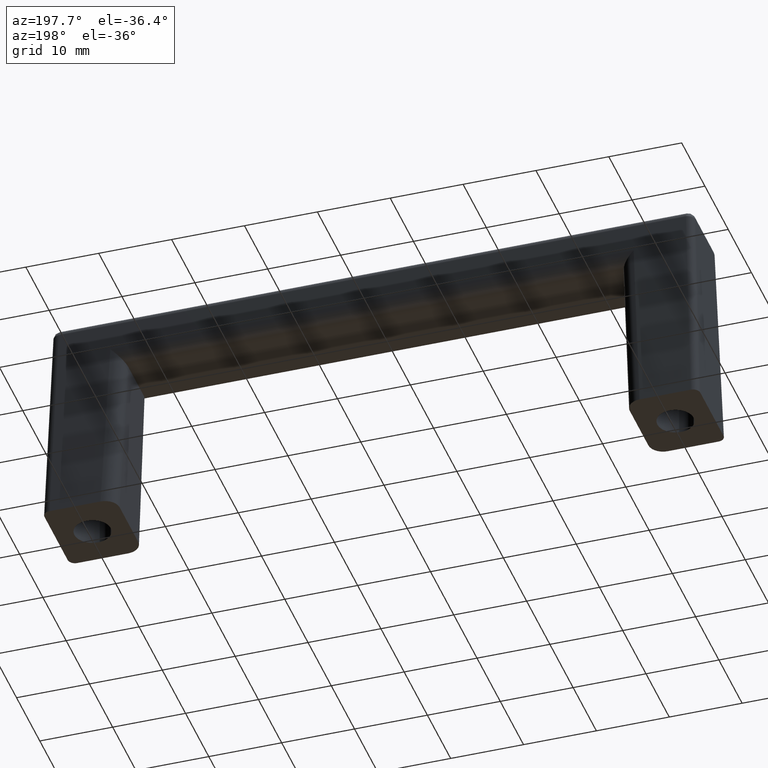
[diagram: clean part render]
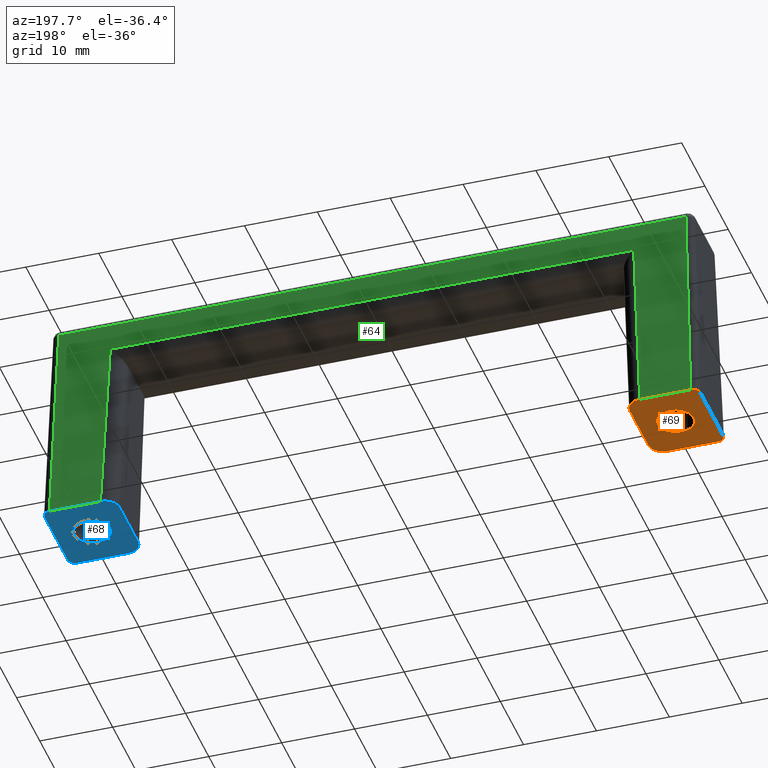
[diagram: same view with three faces highlighted in distinct colors, each labeled with its STEP entity id]
A machine part, auxiliary view with three faces highlighted in distinct colors.
Their STEP definitions:

[orange] entity #69 — the highlighted planar face has unit normal (0, 0, -1).
#69=ADVANCED_FACE('',(#366,#367),#365,.T.);
#365=PLANE('',#613);
#366=FACE_OUTER_BOUND('',#614,.T.);
#367=FACE_BOUND('',#615,.T.);
#610=CARTESIAN_POINT('',(-3.40000000000E+01,-7.20000000000E+00,0.00000000000E+00));
#611=DIRECTION('',(0.00000000000E+00,0.00000000000E+00,-1.00000000000E+00));
#612=DIRECTION('',(-1.00000000000E+00,0.00000000000E+00,0.00000000000E+00));
#613=AXIS2_PLACEMENT_3D('',#610,#611,#612);
#614=EDGE_LOOP('',(#769,#770,#771,#772,#773,#774,#775,#776));
#615=EDGE_LOOP('',(#777,#778,#779));
#769=ORIENTED_EDGE('',*,*,#806,.T.);
#770=ORIENTED_EDGE('',*,*,#826,.T.);
#771=ORIENTED_EDGE('',*,*,#866,.F.);
#772=ORIENTED_EDGE('',*,*,#831,.T.);
#773=ORIENTED_EDGE('',*,*,#871,.F.);
#774=ORIENTED_EDGE('',*,*,#851,.T.);
#775=ORIENTED_EDGE('',*,*,#868,.T.);
#776=ORIENTED_EDGE('',*,*,#818,.T.);
#777=ORIENTED_EDGE('',*,*,#875,.F.);
#778=ORIENTED_EDGE('',*,*,#876,.F.);
#779=ORIENTED_EDGE('',*,*,#877,.F.);
#806=EDGE_CURVE('',#924,#917,#925,.T.);
#818=EDGE_CURVE('',#1006,#924,#1007,.T.);
#826=EDGE_CURVE('',#917,#1052,#1059,.T.);
#831=EDGE_CURVE('',#1091,#1092,#1093,.T.);
#851=EDGE_CURVE('',#1226,#1227,#1228,.T.);
#866=EDGE_CURVE('',#1091,#1052,#1324,.T.);
#868=EDGE_CURVE('',#1227,#1006,#1336,.T.);
#871=EDGE_CURVE('',#1226,#1092,#1354,.T.);
#875=EDGE_CURVE('',#1381,#1382,#1383,.T.);
#876=EDGE_CURVE('',#1389,#1381,#1390,.T.);
#877=EDGE_CURVE('',#1382,#1389,#1396,.T.);
#917=VERTEX_POINT('',#1447);
#924=VERTEX_POINT('',#1451);
#925=LINE('',#1452,#1453);
#1006=VERTEX_POINT('',#1505);
#1007=(BOUNDED_CURVE() B_SPLINE_CURVE(2,(#1506,#1507,#1508,#1509,#1510),.UNSPECIFIED.,.F.,.F.) B_SPLINE_CURVE_WITH_KNOTS((3,2,3),(0.00000000000E+00,5.00000000000E-01,1.00000000000E+00),.UNSPECIFIED.) CURVE() GEOMETRIC_REPRESENTATION_ITEM() RATIONAL_B_SPLINE_CURVE((1.00000000000E+00,9.23740992977E-01,1.00000000000E+00,9.23740992977E-01,1.00000000000E+00)) REPRESENTATION_ITEM('') );
#1052=VERTEX_POINT('',#1538);
#1059=(BOUNDED_CURVE() B_SPLINE_CURVE(2,(#1542,#1543,#1544,#1545,#1546),.UNSPECIFIED.,.F.,.F.) B_SPLINE_CURVE_WITH_KNOTS((3,2,3),(0.00000000000E+00,5.00000000000E-01,1.00000000000E+00),.UNSPECIFIED.) CURVE() GEOMETRIC_REPRESENTATION_ITEM() RATIONAL_B_SPLINE_CURVE((1.00000000000E+00,9.23740992977E-01,1.00000000000E+00,9.23740992977E-01,1.00000000000E+00)) REPRESENTATION_ITEM('') );
#1091=VERTEX_POINT('',#1565);
#1092=VERTEX_POINT('',#1566);
#1093=(BOUNDED_CURVE() B_SPLINE_CURVE(2,(#1567,#1568,#1569),.UNSPECIFIED.,.F.,.F.) B_SPLINE_CURVE_WITH_KNOTS((3,3),(0.00000000000E+00,1.00000000000E+00),.UNSPECIFIED.) CURVE() GEOMETRIC_REPRESENTATION_ITEM() RATIONAL_B_SPLINE_CURVE((1.00000000000E+00,7.07499181416E-01,1.00000000000E+00)) REPRESENTATION_ITEM('') );
#1226=VERTEX_POINT('',#1650);
#1227=VERTEX_POINT('',#1651);
#1228=(BOUNDED_CURVE() B_SPLINE_CURVE(2,(#1652,#1653,#1654),.UNSPECIFIED.,.F.,.F.) B_SPLINE_CURVE_WITH_KNOTS((3,3),(0.00000000000E+00,1.00000000000E+00),.UNSPECIFIED.) CURVE() GEOMETRIC_REPRESENTATION_ITEM() RATIONAL_B_SPLINE_CURVE((1.00000000000E+00,7.07499181416E-01,1.00000000000E+00)) REPRESENTATION_ITEM('') );
#1324=LINE('',#1708,#1709);
#1336=LINE('',#1714,#1715);
#1354=LINE('',#1723,#1724);
#1381=VERTEX_POINT('',#1741);
#1382=VERTEX_POINT('',#1742);
#1383=CIRCLE('',#1746,2.50000000000E+00);
#1389=VERTEX_POINT('',#1747);
#1390=CIRCLE('',#1751,2.50000000000E+00);
#1396=CIRCLE('',#1755,2.50000000000E+00);
#1447=CARTESIAN_POINT('',(-3.50000000000E+01,-3.99599214866E+00,0.00000000000E+00));
#1451=CARTESIAN_POINT('',(-3.50000000000E+01,3.99599214866E+00,0.00000000000E+00));
#1452=CARTESIAN_POINT('',(-3.50000000000E+01,3.99599214866E+00,0.00000000000E+00));
#1453=VECTOR('',#1454,7.99198429731E+00);
#1454=DIRECTION('',(0.00000000000E+00,-1.00000000000E+00,0.00000000000E+00));
#1505=CARTESIAN_POINT('',(-3.70047871061E+01,6.00000000000E+00,0.00000000000E+00));
#1506=CARTESIAN_POINT('',(-3.70047871061E+01,6.00000000000E+00,0.00000000000E+00));
#1507=CARTESIAN_POINT('',(-3.61747293817E+01,6.00000000000E+00,0.00000000000E+00));
#1508=CARTESIAN_POINT('',(-3.55873646908E+01,5.41286361607E+00,0.00000000000E+00));
#1509=CARTESIAN_POINT('',(-3.50000000000E+01,4.82572723213E+00,0.00000000000E+00));
#1510=CARTESIAN_POINT('',(-3.50000000000E+01,3.99599214866E+00,0.00000000000E+00));
#1538=CARTESIAN_POINT('',(-3.70047871061E+01,-6.00000000000E+00,0.00000000000E+00));
#1542=CARTESIAN_POINT('',(-3.50000000000E+01,-3.99599214866E+00,0.00000000000E+00));
#1543=CARTESIAN_POINT('',(-3.50000000000E+01,-4.82572723213E+00,0.00000000000E+00));
#1544=CARTESIAN_POINT('',(-3.55873646908E+01,-5.41286361607E+00,0.00000000000E+00));
#1545=CARTESIAN_POINT('',(-3.61747293817E+01,-6.00000000000E+00,0.00000000000E+00));
#1546=CARTESIAN_POINT('',(-3.70047871061E+01,-6.00000000000E+00,0.00000000000E+00));
#1565=CARTESIAN_POINT('',(-4.40005553605E+01,-6.00000000000E+00,0.00000000000E+00));
#1566=CARTESIAN_POINT('',(-4.50000000000E+01,-5.00055513121E+00,0.00000000000E+00));
#1567=CARTESIAN_POINT('',(-4.40005553605E+01,-6.00000000000E+00,0.00000000000E+00));
#1568=CARTESIAN_POINT('',(-4.50000000000E+01,-6.00000000000E+00,0.00000000000E+00));
#1569=CARTESIAN_POINT('',(-4.50000000000E+01,-5.00055513121E+00,0.00000000000E+00));
#1650=CARTESIAN_POINT('',(-4.50000000000E+01,5.00055513120E+00,0.00000000000E+00));
#1651=CARTESIAN_POINT('',(-4.40005553605E+01,6.00000000000E+00,0.00000000000E+00));
#1652=CARTESIAN_POINT('',(-4.50000000000E+01,5.00055513120E+00,0.00000000000E+00));
#1653=CARTESIAN_POINT('',(-4.50000000000E+01,6.00000000000E+00,0.00000000000E+00));
#1654=CARTESIAN_POINT('',(-4.40005553605E+01,6.00000000000E+00,0.00000000000E+00));
#1708=CARTESIAN_POINT('',(-4.40005553605E+01,-6.00000000000E+00,0.00000000000E+00));
#1709=VECTOR('',#1710,6.99576825438E+00);
#1710=DIRECTION('',(1.00000000000E+00,0.00000000000E+00,0.00000000000E+00));
#1714=CARTESIAN_POINT('',(-4.40005553605E+01,6.00000000000E+00,0.00000000000E+00));
#1715=VECTOR('',#1716,6.99576825438E+00);
#1716=DIRECTION('',(1.00000000000E+00,0.00000000000E+00,0.00000000000E+00));
#1723=CARTESIAN_POINT('',(-4.50000000000E+01,5.00055513120E+00,0.00000000000E+00));
#1724=VECTOR('',#1725,1.00011102624E+01);
#1725=DIRECTION('',(0.00000000000E+00,-1.00000000000E+00,0.00000000000E+00));
#1741=CARTESIAN_POINT('',(-3.97049153212E+01,-2.48252392382E+00,-6.81319777001E-16));
#1742=CARTESIAN_POINT('',(-4.25000000000E+01,-9.99200722163E-16,-6.20396009080E-15));
#1743=CARTESIAN_POINT('',(-4.00000000000E+01,-1.73194791842E-14,-5.11024536365E-16));
#1744=DIRECTION('',(2.27717422177E-15,3.39273453259E-16,-1.00000000000E+00));
#1745=DIRECTION('',(-1.00000000000E+00,6.91113832829E-15,-2.27717422177E-15));
#1746=AXIS2_PLACEMENT_3D('',#1743,#1744,#1745);
#1747=CARTESIAN_POINT('',(-4.02955146530E+01,2.48247277726E+00,-3.41725774580E-16));
#1748=CARTESIAN_POINT('',(-4.00000000000E+01,-1.73194791842E-14,-5.11024536365E-16));
#1749=DIRECTION('',(2.27717422177E-15,3.39273453259E-16,-1.00000000000E+00));
#1750=DIRECTION('',(-1.00000000000E+00,6.91113832829E-15,-2.27717422177E-15));
#1751=AXIS2_PLACEMENT_3D('',#1748,#1749,#1750);
#1752=CARTESIAN_POINT('',(-4.00000000000E+01,-1.73194791842E-14,-5.11024536365E-16));
#1753=DIRECTION('',(2.27717422177E-15,3.39273453259E-16,-1.00000000000E+00));
#1754=DIRECTION('',(-1.00000000000E+00,6.91113832829E-15,-2.27717422177E-15));
#1755=AXIS2_PLACEMENT_3D('',#1752,#1753,#1754);

[blue] entity #68 — the highlighted planar face has unit normal (0, 0, -1).
#68=ADVANCED_FACE('',(#355,#356),#354,.T.);
#354=PLANE('',#607);
#355=FACE_OUTER_BOUND('',#608,.T.);
#356=FACE_BOUND('',#609,.T.);
#604=CARTESIAN_POINT('',(4.60000000000E+01,-7.20000000000E+00,0.00000000000E+00));
#605=DIRECTION('',(0.00000000000E+00,0.00000000000E+00,-1.00000000000E+00));
#606=DIRECTION('',(-1.00000000000E+00,8.07508320003E-17,0.00000000000E+00));
#607=AXIS2_PLACEMENT_3D('',#604,#605,#606);
#608=EDGE_LOOP('',(#758,#759,#760,#761,#762,#763,#764,#765));
#609=EDGE_LOOP('',(#766,#767,#768));
#758=ORIENTED_EDGE('',*,*,#867,.F.);
#759=ORIENTED_EDGE('',*,*,#829,.T.);
#760=ORIENTED_EDGE('',*,*,#809,.F.);
#761=ORIENTED_EDGE('',*,*,#823,.T.);
#762=ORIENTED_EDGE('',*,*,#869,.T.);
#763=ORIENTED_EDGE('',*,*,#857,.T.);
#764=ORIENTED_EDGE('',*,*,#870,.T.);
#765=ORIENTED_EDGE('',*,*,#842,.T.);
#766=ORIENTED_EDGE('',*,*,#872,.T.);
#767=ORIENTED_EDGE('',*,*,#873,.T.);
#768=ORIENTED_EDGE('',*,*,#874,.T.);
#809=EDGE_CURVE('',#944,#945,#946,.T.);
#823=EDGE_CURVE('',#944,#1032,#1039,.T.);
#829=EDGE_CURVE('',#1078,#945,#1079,.T.);
#842=EDGE_CURVE('',#1165,#1166,#1167,.T.);
#857=EDGE_CURVE('',#1266,#1259,#1267,.T.);
#867=EDGE_CURVE('',#1078,#1166,#1330,.T.);
#869=EDGE_CURVE('',#1032,#1266,#1342,.T.);
#870=EDGE_CURVE('',#1259,#1165,#1348,.T.);
#872=EDGE_CURVE('',#1360,#1361,#1362,.T.);
#873=EDGE_CURVE('',#1361,#1368,#1369,.T.);
#874=EDGE_CURVE('',#1368,#1360,#1375,.T.);
#944=VERTEX_POINT('',#1463);
#945=VERTEX_POINT('',#1464);
#946=LINE('',#1465,#1466);
#1032=VERTEX_POINT('',#1523);
#1039=(BOUNDED_CURVE() B_SPLINE_CURVE(2,(#1527,#1528,#1529,#1530,#1531),.UNSPECIFIED.,.F.,.F.) B_SPLINE_CURVE_WITH_KNOTS((3,2,3),(0.00000000000E+00,5.00000000000E-01,1.00000000000E+00),.UNSPECIFIED.) CURVE() GEOMETRIC_REPRESENTATION_ITEM() RATIONAL_B_SPLINE_CURVE((1.00000000000E+00,9.23740992977E-01,1.00000000000E+00,9.23740992977E-01,1.00000000000E+00)) REPRESENTATION_ITEM('') );
#1078=VERTEX_POINT('',#1556);
#1079=(BOUNDED_CURVE() B_SPLINE_CURVE(2,(#1557,#1558,#1559,#1560,#1561),.UNSPECIFIED.,.F.,.F.) B_SPLINE_CURVE_WITH_KNOTS((3,2,3),(0.00000000000E+00,5.00000000000E-01,1.00000000000E+00),.UNSPECIFIED.) CURVE() GEOMETRIC_REPRESENTATION_ITEM() RATIONAL_B_SPLINE_CURVE((1.00000000000E+00,9.23740992977E-01,1.00000000000E+00,9.23740992977E-01,1.00000000000E+00)) REPRESENTATION_ITEM('') );
#1165=VERTEX_POINT('',#1612);
#1166=VERTEX_POINT('',#1613);
#1167=(BOUNDED_CURVE() B_SPLINE_CURVE(2,(#1614,#1615,#1616),.UNSPECIFIED.,.F.,.F.) B_SPLINE_CURVE_WITH_KNOTS((3,3),(0.00000000000E+00,1.00000000000E+00),.UNSPECIFIED.) CURVE() GEOMETRIC_REPRESENTATION_ITEM() RATIONAL_B_SPLINE_CURVE((1.00000000000E+00,7.07499262395E-01,1.00000000000E+00)) REPRESENTATION_ITEM('') );
#1259=VERTEX_POINT('',#1670);
#1266=VERTEX_POINT('',#1674);
#1267=(BOUNDED_CURVE() B_SPLINE_CURVE(2,(#1675,#1676,#1677),.UNSPECIFIED.,.F.,.F.) B_SPLINE_CURVE_WITH_KNOTS((3,3),(0.00000000000E+00,1.00000000000E+00),.UNSPECIFIED.) CURVE() GEOMETRIC_REPRESENTATION_ITEM() RATIONAL_B_SPLINE_CURVE((1.00000000000E+00,7.07499262395E-01,1.00000000000E+00)) REPRESENTATION_ITEM('') );
#1330=LINE('',#1711,#1712);
#1342=LINE('',#1717,#1718);
#1348=LINE('',#1720,#1721);
#1360=VERTEX_POINT('',#1726);
#1361=VERTEX_POINT('',#1727);
#1362=CIRCLE('',#1731,2.50000000022E+00);
#1368=VERTEX_POINT('',#1732);
#1369=CIRCLE('',#1736,2.50000000022E+00);
#1375=CIRCLE('',#1740,2.50000000022E+00);
#1463=CARTESIAN_POINT('',(3.50000000000E+01,3.99599214866E+00,0.00000000000E+00));
#1464=CARTESIAN_POINT('',(3.50000000000E+01,-3.99599214866E+00,0.00000000000E+00));
#1465=CARTESIAN_POINT('',(3.50000000000E+01,3.99599214866E+00,0.00000000000E+00));
#1466=VECTOR('',#1467,7.99198429731E+00);
#1467=DIRECTION('',(0.00000000000E+00,-1.00000000000E+00,0.00000000000E+00));
#1523=CARTESIAN_POINT('',(3.70047871061E+01,6.00000000000E+00,0.00000000000E+00));
#1527=CARTESIAN_POINT('',(3.50000000000E+01,3.99599214866E+00,0.00000000000E+00));
#1528=CARTESIAN_POINT('',(3.50000000000E+01,4.82572723213E+00,0.00000000000E+00));
#1529=CARTESIAN_POINT('',(3.55873646908E+01,5.41286361607E+00,0.00000000000E+00));
#1530=CARTESIAN_POINT('',(3.61747293817E+01,6.00000000000E+00,0.00000000000E+00));
#1531=CARTESIAN_POINT('',(3.70047871061E+01,6.00000000000E+00,0.00000000000E+00));
#1556=CARTESIAN_POINT('',(3.70047871061E+01,-6.00000000000E+00,0.00000000000E+00));
#1557=CARTESIAN_POINT('',(3.70047871061E+01,-6.00000000000E+00,0.00000000000E+00));
#1558=CARTESIAN_POINT('',(3.61747293817E+01,-6.00000000000E+00,0.00000000000E+00));
#1559=CARTESIAN_POINT('',(3.55873646908E+01,-5.41286361607E+00,0.00000000000E+00));
#1560=CARTESIAN_POINT('',(3.50000000000E+01,-4.82572723213E+00,0.00000000000E+00));
#1561=CARTESIAN_POINT('',(3.50000000000E+01,-3.99599214866E+00,0.00000000000E+00));
#1612=CARTESIAN_POINT('',(4.50000000000E+01,-5.00055536050E+00,0.00000000000E+00));
#1613=CARTESIAN_POINT('',(4.40005553605E+01,-6.00000000000E+00,0.00000000000E+00));
#1614=CARTESIAN_POINT('',(4.50000000000E+01,-5.00055536050E+00,0.00000000000E+00));
#1615=CARTESIAN_POINT('',(4.50000000000E+01,-6.00000000000E+00,0.00000000000E+00));
#1616=CARTESIAN_POINT('',(4.40005553605E+01,-6.00000000000E+00,0.00000000000E+00));
#1670=CARTESIAN_POINT('',(4.50000000000E+01,5.00055536050E+00,0.00000000000E+00));
#1674=CARTESIAN_POINT('',(4.40005553605E+01,6.00000000000E+00,0.00000000000E+00));
#1675=CARTESIAN_POINT('',(4.40005553605E+01,6.00000000000E+00,0.00000000000E+00));
#1676=CARTESIAN_POINT('',(4.50000000000E+01,6.00000000000E+00,0.00000000000E+00));
#1677=CARTESIAN_POINT('',(4.50000000000E+01,5.00055536050E+00,0.00000000000E+00));
#1711=CARTESIAN_POINT('',(3.70047871061E+01,-6.00000000000E+00,0.00000000000E+00));
#1712=VECTOR('',#1713,6.99576825440E+00);
#1713=DIRECTION('',(1.00000000000E+00,0.00000000000E+00,0.00000000000E+00));
#1717=CARTESIAN_POINT('',(3.70047871061E+01,6.00000000000E+00,0.00000000000E+00));
#1718=VECTOR('',#1719,6.99576825440E+00);
#1719=DIRECTION('',(1.00000000000E+00,0.00000000000E+00,0.00000000000E+00));
#1720=CARTESIAN_POINT('',(4.50000000000E+01,5.00055536050E+00,0.00000000000E+00));
#1721=VECTOR('',#1722,1.00011107210E+01);
#1722=DIRECTION('',(0.00000000000E+00,-1.00000000000E+00,0.00000000000E+00));
#1726=CARTESIAN_POINT('',(3.74999999996E+01,-3.59947444460E-16,-7.22847783627E-16));
#1727=CARTESIAN_POINT('',(3.98038522606E+01,-2.49229333476E+00,-3.89780883516E-16));
#1728=CARTESIAN_POINT('',(3.99999999998E+01,-2.00474969958E-10,-3.61423891813E-16));
#1729=DIRECTION('',(-1.44569556713E-16,8.71632271676E-31,1.00000000000E+00));
#1730=DIRECTION('',(-1.00000000000E+00,8.01901656258E-11,-1.44569556713E-16));
#1731=AXIS2_PLACEMENT_3D('',#1728,#1729,#1730);
#1732=CARTESIAN_POINT('',(4.01962684498E+01,2.49228383127E+00,-3.33049448993E-16));
#1733=CARTESIAN_POINT('',(3.99999999998E+01,-2.00474969958E-10,-3.61423891813E-16));
#1734=DIRECTION('',(-1.44569556713E-16,8.71632271676E-31,1.00000000000E+00));
#1735=DIRECTION('',(-1.00000000000E+00,8.01901656258E-11,-1.44569556713E-16));
#1736=AXIS2_PLACEMENT_3D('',#1733,#1734,#1735);
#1737=CARTESIAN_POINT('',(3.99999999998E+01,-2.00474969958E-10,-3.61423891813E-16));
#1738=DIRECTION('',(-1.44569556713E-16,8.71632271676E-31,1.00000000000E+00));
#1739=DIRECTION('',(-1.00000000000E+00,8.01901656258E-11,-1.44569556713E-16));
#1740=AXIS2_PLACEMENT_3D('',#1737,#1738,#1739);

[green] entity #64 — the highlighted planar face has unit normal (0, -0.9994, -0.0333).
#64=ADVANCED_FACE('',(#315),#314,.F.);
#314=PLANE('',#587);
#315=FACE_OUTER_BOUND('',#588,.T.);
#584=CARTESIAN_POINT('',(-5.28006664326E+01,4.93518815918E+00,3.19366551391E+01));
#585=DIRECTION('',(0.00000000000E+00,-9.99444639499E-01,-3.33228536849E-02));
#586=DIRECTION('',(0.00000000000E+00,3.33228536849E-02,-9.99444639499E-01));
#587=AXIS2_PLACEMENT_3D('',#584,#585,#586);
#588=EDGE_LOOP('',(#738,#739,#740,#741,#742,#743,#744,#745));
#738=ORIENTED_EDGE('',*,*,#820,.T.);
#739=ORIENTED_EDGE('',*,*,#819,.T.);
#740=ORIENTED_EDGE('',*,*,#868,.F.);
#741=ORIENTED_EDGE('',*,*,#853,.T.);
#742=ORIENTED_EDGE('',*,*,#849,.T.);
#743=ORIENTED_EDGE('',*,*,#858,.T.);
#744=ORIENTED_EDGE('',*,*,#869,.F.);
#745=ORIENTED_EDGE('',*,*,#822,.T.);
#819=EDGE_CURVE('',#999,#1006,#1013,.T.);
#820=EDGE_CURVE('',#1019,#999,#1020,.T.);
#822=EDGE_CURVE('',#1032,#1019,#1033,.T.);
#849=EDGE_CURVE('',#1185,#1207,#1214,.T.);
#853=EDGE_CURVE('',#1227,#1185,#1240,.T.);
#858=EDGE_CURVE('',#1207,#1266,#1273,.T.);
#868=EDGE_CURVE('',#1227,#1006,#1336,.T.);
#869=EDGE_CURVE('',#1032,#1266,#1342,.T.);
#999=VERTEX_POINT('',#1499);
#1006=VERTEX_POINT('',#1505);
#1013=LINE('',#1511,#1512);
#1019=VERTEX_POINT('',#1514);
#1020=LINE('',#1515,#1516);
#1032=VERTEX_POINT('',#1523);
#1033=LINE('',#1524,#1525);
#1185=VERTEX_POINT('',#1623);
#1207=VERTEX_POINT('',#1639);
#1214=LINE('',#1644,#1645);
#1227=VERTEX_POINT('',#1651);
#1240=LINE('',#1658,#1659);
#1266=VERTEX_POINT('',#1674);
#1273=LINE('',#1678,#1679);
#1336=LINE('',#1714,#1715);
#1342=LINE('',#1717,#1718);
#1499=CARTESIAN_POINT('',(-3.59149329449E+01,5.16424368668E+00,2.50666457074E+01));
#1505=CARTESIAN_POINT('',(-3.70047871061E+01,6.00000000000E+00,0.00000000000E+00));
#1511=CARTESIAN_POINT('',(-3.59149329449E+01,5.16424368668E+00,2.50666457074E+01));
#1512=VECTOR('',#1513,2.51042426240E+01);
#1513=DIRECTION('',(-4.34131464355E-02,3.32914370627E-02,-9.98502368017E-01));
#1514=CARTESIAN_POINT('',(3.59149329449E+01,5.16424368668E+00,2.50666457074E+01));
#1515=CARTESIAN_POINT('',(3.59149329449E+01,5.16424368668E+00,2.50666457074E+01));
#1516=VECTOR('',#1517,7.18298658898E+01);
#1517=DIRECTION('',(-1.00000000000E+00,0.00000000000E+00,0.00000000000E+00));
#1523=CARTESIAN_POINT('',(3.70047871061E+01,6.00000000000E+00,0.00000000000E+00));
#1524=CARTESIAN_POINT('',(3.70047871061E+01,6.00000000000E+00,0.00000000000E+00));
#1525=VECTOR('',#1526,2.51042426240E+01);
#1526=DIRECTION('',(-4.34131464355E-02,-3.32914370627E-02,9.98502368017E-01));
#1623=CARTESIAN_POINT('',(-4.30327445983E+01,5.03198923562E+00,2.90333228537E+01));
#1639=CARTESIAN_POINT('',(4.30325445961E+01,5.03198923562E+00,2.90333228537E+01));
#1644=CARTESIAN_POINT('',(-4.30327445983E+01,5.03198923562E+00,2.90333228537E+01));
#1645=VECTOR('',#1646,8.60652891944E+01);
#1646=DIRECTION('',(1.00000000000E+00,0.00000000000E+00,0.00000000000E+00));
#1651=CARTESIAN_POINT('',(-4.40005553605E+01,6.00000000000E+00,0.00000000000E+00));
#1658=CARTESIAN_POINT('',(-4.40005553605E+01,6.00000000000E+00,0.00000000000E+00));
#1659=VECTOR('',#1660,2.90655730795E+01);
#1660=DIRECTION('',(3.32974945828E-02,-3.33043756522E-02,9.98890432138E-01));
#1674=CARTESIAN_POINT('',(4.40005553605E+01,6.00000000000E+00,0.00000000000E+00));
#1678=CARTESIAN_POINT('',(4.30325445961E+01,5.03198923562E+00,2.90333228537E+01));
#1679=VECTOR('',#1680,2.90655797397E+01);
#1680=DIRECTION('',(3.33043680206E-02,3.33043680206E-02,-9.98890203246E-01));
#1714=CARTESIAN_POINT('',(-4.40005553605E+01,6.00000000000E+00,0.00000000000E+00));
#1715=VECTOR('',#1716,6.99576825438E+00);
#1716=DIRECTION('',(1.00000000000E+00,0.00000000000E+00,0.00000000000E+00));
#1717=CARTESIAN_POINT('',(3.70047871061E+01,6.00000000000E+00,0.00000000000E+00));
#1718=VECTOR('',#1719,6.99576825440E+00);
#1719=DIRECTION('',(1.00000000000E+00,0.00000000000E+00,0.00000000000E+00));